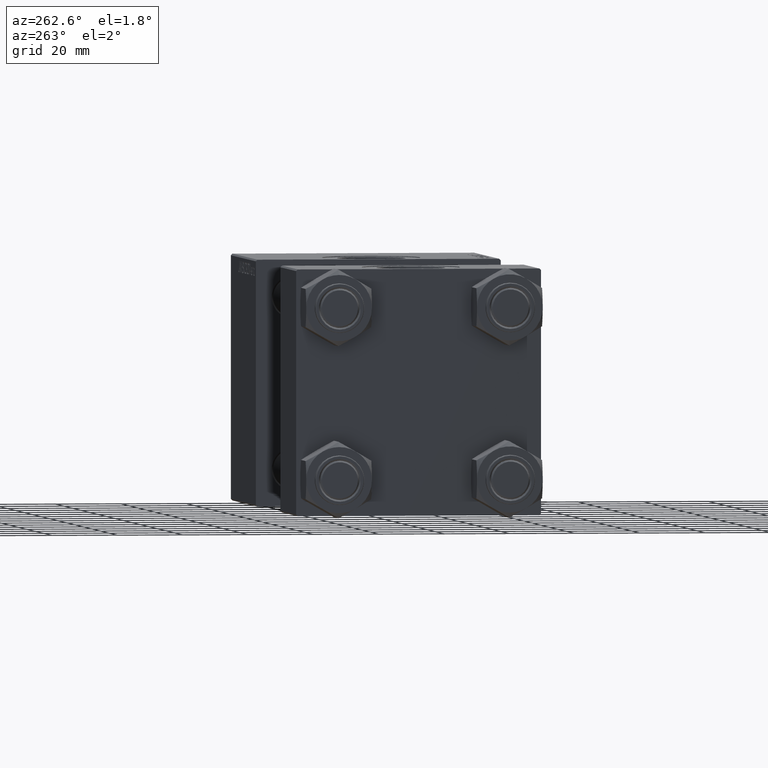
[diagram: clean part render]
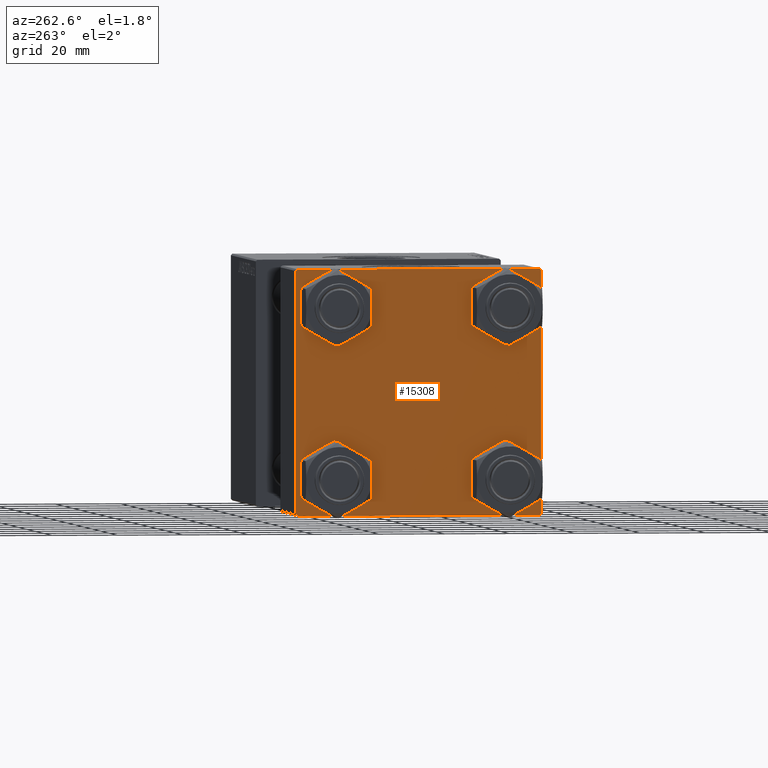
[diagram: same view with one face highlighted and labeled with its STEP entity id]
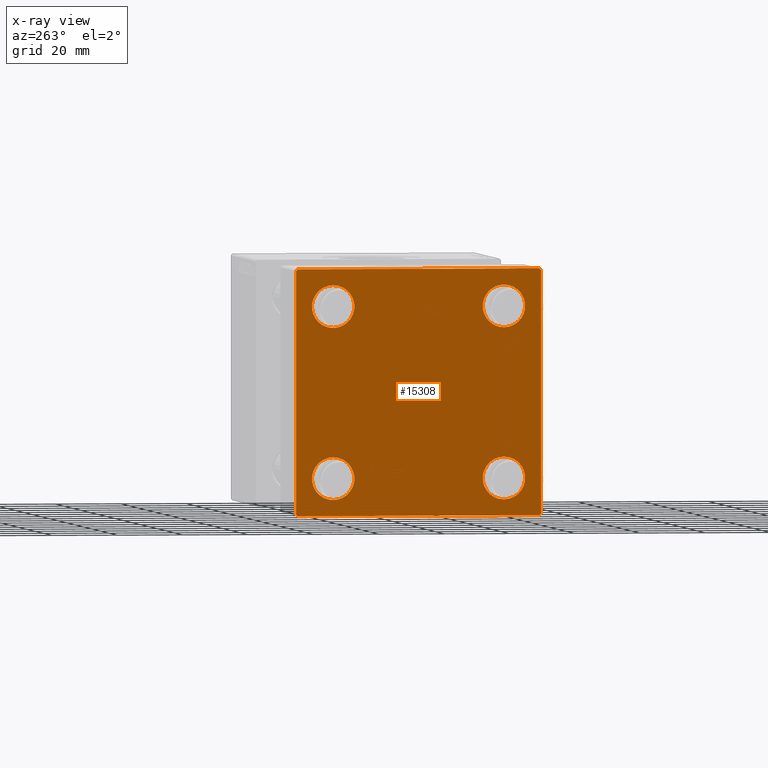
[diagram: x-ray of the same camera — body ghosted, the highlighted face saturated]
A machine part, auxiliary view. The second image highlights one B-rep face of the part: STEP entity #15308.
The next image is the same camera in x-ray: the body ghosted, the highlighted face saturated — about 0% of this face is hidden behind the body in this view.
In plain terms, the highlighted planar face has unit normal (-1, 0, 0).
Its self-contained STEP definition (entity closure, byte-faithful):
#644 = CIRCLE ( 'NONE', #3061, 6.500000000000023093 ) ;
#1018 = LINE ( 'NONE', #48705, #1690 ) ;
#1124 = DIRECTION ( 'NONE',  ( 0.000000000000000000, 9.251858538542971581E-17, -1.000000000000000000 ) ) ;
#1266 = DIRECTION ( 'NONE',  ( 0.000000000000000000, 0.000000000000000000, 1.000000000000000000 ) ) ;
#1512 = CARTESIAN_POINT ( 'NONE',  ( 0.000000000000000000, -26.14999999999999147, 26.15000000000000924 ) ) ;
#1562 = VERTEX_POINT ( 'NONE', #18338 ) ;
#1690 = VECTOR ( 'NONE', #37539, 1000.000000000000000 ) ;
#1730 = ORIENTED_EDGE ( 'NONE', *, *, #2962, .T. ) ;
#2144 = ORIENTED_EDGE ( 'NONE', *, *, #49362, .T. ) ;
#2298 = AXIS2_PLACEMENT_3D ( 'NONE', #1512, #9367, #1266 ) ;
#2701 = AXIS2_PLACEMENT_3D ( 'NONE', #38848, #46947, #38598 ) ;
#2962 = EDGE_CURVE ( 'NONE', #27516, #44916, #41429, .T. ) ;
#3061 = AXIS2_PLACEMENT_3D ( 'NONE', #7565, #18991, #46409 ) ;
#5873 = CARTESIAN_POINT ( 'NONE',  ( 0.000000000000000000, -37.50000000000000711, 36.99999999999999289 ) ) ;
#6425 = DIRECTION ( 'NONE',  ( 1.000000000000000000, -0.000000000000000000, 0.000000000000000000 ) ) ;
#7031 = VERTEX_POINT ( 'NONE', #31241 ) ;
#7172 = DIRECTION ( 'NONE',  ( 0.000000000000000000, 0.000000000000000000, 1.000000000000000000 ) ) ;
#7565 = CARTESIAN_POINT ( 'NONE',  ( 0.000000000000000000, -26.14999999999999147, 26.15000000000000924 ) ) ;
#7682 = VECTOR ( 'NONE', #49515, 1000.000000000000000 ) ;
#7831 = EDGE_CURVE ( 'NONE', #30831, #23333, #48501, .T. ) ;
#7920 = CARTESIAN_POINT ( 'NONE',  ( 0.000000000000000000, 37.49999999999999289, 37.00000000000000000 ) ) ;
#7930 = CARTESIAN_POINT ( 'NONE',  ( 0.000000000000000000, -26.14999999999999147, -26.15000000000000924 ) ) ;
#8259 = ORIENTED_EDGE ( 'NONE', *, *, #28139, .T. ) ;
#8741 = EDGE_CURVE ( 'NONE', #22875, #25698, #24701, .T. ) ;
#8817 = ORIENTED_EDGE ( 'NONE', *, *, #30505, .T. ) ;
#9002 = ORIENTED_EDGE ( 'NONE', *, *, #45645, .T. ) ;
#9184 = VECTOR ( 'NONE', #47075, 1000.000000000000000 ) ;
#9367 = DIRECTION ( 'NONE',  ( 1.000000000000000000, -0.000000000000000000, 0.000000000000000000 ) ) ;
#9475 = DIRECTION ( 'NONE',  ( 0.000000000000000000, 0.000000000000000000, 1.000000000000000000 ) ) ;
#9944 = VERTEX_POINT ( 'NONE', #23588 ) ;
#10943 = CARTESIAN_POINT ( 'NONE',  ( 0.000000000000000000, 26.14999999999999858, -26.15000000000000213 ) ) ;
#11521 = ORIENTED_EDGE ( 'NONE', *, *, #29496, .T. ) ;
#11957 = EDGE_CURVE ( 'NONE', #28321, #36147, #48499, .T. ) ;
#12076 = CARTESIAN_POINT ( 'NONE',  ( 0.000000000000000000, -26.14999999999999147, -32.65000000000002700 ) ) ;
#12543 = CARTESIAN_POINT ( 'NONE',  ( 0.000000000000000000, -37.50000000000000711, 37.49999999999999289 ) ) ;
#12641 = CARTESIAN_POINT ( 'NONE',  ( 0.000000000000000000, 36.99999999999997868, -37.50000000000000000 ) ) ;
#12800 = LINE ( 'NONE', #12543, #46181 ) ;
#14507 = VERTEX_POINT ( 'NONE', #22545 ) ;
#14747 = ORIENTED_EDGE ( 'NONE', *, *, #7831, .T. ) ;
#15142 = DIRECTION ( 'NONE',  ( 0.000000000000000000, -1.000000000000000000, -9.251858538542972814E-17 ) ) ;
#15256 = DIRECTION ( 'NONE',  ( 0.000000000000000000, 0.7071067811865474617, -0.7071067811865474617 ) ) ;
#15308 = ADVANCED_FACE ( 'NONE', ( #23131, #19818, #38366, #19057, #38872 ), #19561, .T. ) ;
#15587 = CIRCLE ( 'NONE', #18845, 6.500000000000023093 ) ;
#15772 = CARTESIAN_POINT ( 'NONE',  ( 0.000000000000000000, 37.49999999999999289, -36.99999999999998579 ) ) ;
#16267 = DIRECTION ( 'NONE',  ( 0.000000000000000000, 0.000000000000000000, 1.000000000000000000 ) ) ;
#16746 = EDGE_LOOP ( 'NONE', ( #26211, #29043 ) ) ;
#17082 = DIRECTION ( 'NONE',  ( -0.000000000000000000, -0.7071067811865474617, -0.7071067811865474617 ) ) ;
#17591 = CARTESIAN_POINT ( 'NONE',  ( 0.000000000000000000, 26.14999999999999858, 26.15000000000000213 ) ) ;
#18067 = CARTESIAN_POINT ( 'NONE',  ( -0.000000000000000000, -37.25000000000000000, 37.25000000000000000 ) ) ;
#18259 = EDGE_CURVE ( 'NONE', #44916, #22875, #1018, .T. ) ;
#18338 = CARTESIAN_POINT ( 'NONE',  ( 0.000000000000000000, -37.00000000000000711, 37.49999999999999289 ) ) ;
#18624 = DIRECTION ( 'NONE',  ( 0.000000000000000000, 0.000000000000000000, 1.000000000000000000 ) ) ;
#18821 = EDGE_LOOP ( 'NONE', ( #48805, #8259 ) ) ;
#18845 = AXIS2_PLACEMENT_3D ( 'NONE', #17591, #29281, #9475 ) ;
#18991 = DIRECTION ( 'NONE',  ( 1.000000000000000000, -0.000000000000000000, 0.000000000000000000 ) ) ;
#19057 = FACE_BOUND ( 'NONE', #41039, .T. ) ;
#19310 = DIRECTION ( 'NONE',  ( -1.000000000000000000, 0.000000000000000000, -0.000000000000000000 ) ) ;
#19561 = PLANE ( 'NONE',  #31622 ) ;
#19818 = FACE_BOUND ( 'NONE', #40375, .T. ) ;
#19870 = DIRECTION ( 'NONE',  ( 1.000000000000000000, -0.000000000000000000, 0.000000000000000000 ) ) ;
#21508 = CARTESIAN_POINT ( 'NONE',  ( 0.000000000000000000, -37.50000000000000000, -37.00000000000003553 ) ) ;
#21635 = LINE ( 'NONE', #18067, #36394 ) ;
#21922 = DIRECTION ( 'NONE',  ( 0.000000000000000000, 0.000000000000000000, 1.000000000000000000 ) ) ;
#22152 = AXIS2_PLACEMENT_3D ( 'NONE', #22174, #6425, #21922 ) ;
#22174 = CARTESIAN_POINT ( 'NONE',  ( 0.000000000000000000, -26.14999999999999147, -26.15000000000000924 ) ) ;
#22438 = CARTESIAN_POINT ( 'NONE',  ( 0.000000000000000000, 26.14999999999999858, 26.15000000000000213 ) ) ;
#22515 = ORIENTED_EDGE ( 'NONE', *, *, #8741, .T. ) ;
#22545 = CARTESIAN_POINT ( 'NONE',  ( 0.000000000000000000, 26.14999999999999858, 19.64999999999998437 ) ) ;
#22841 = EDGE_LOOP ( 'NONE', ( #30928, #22515, #30950, #2144, #29474, #8817, #23203, #1730 ) ) ;
#22875 = VERTEX_POINT ( 'NONE', #15772 ) ;
#23131 = FACE_BOUND ( 'NONE', #18821, .T. ) ;
#23203 = ORIENTED_EDGE ( 'NONE', *, *, #46627, .F. ) ;
#23333 = VERTEX_POINT ( 'NONE', #26092 ) ;
#23588 = CARTESIAN_POINT ( 'NONE',  ( 0.000000000000000000, 26.14999999999999858, 32.65000000000002700 ) ) ;
#24201 = AXIS2_PLACEMENT_3D ( 'NONE', #7930, #19870, #7172 ) ;
#24600 = CIRCLE ( 'NONE', #2701, 6.500000000000015987 ) ;
#24701 = LINE ( 'NONE', #36387, #48392 ) ;
#25284 = CARTESIAN_POINT ( 'NONE',  ( 0.000000000000000000, 26.14999999999999858, -19.64999999999998792 ) ) ;
#25352 = VERTEX_POINT ( 'NONE', #44287 ) ;
#25698 = VERTEX_POINT ( 'NONE', #12641 ) ;
#26092 = CARTESIAN_POINT ( 'NONE',  ( 0.000000000000000000, -26.14999999999999147, -19.64999999999999503 ) ) ;
#26211 = ORIENTED_EDGE ( 'NONE', *, *, #26516, .T. ) ;
#26516 = EDGE_CURVE ( 'NONE', #43763, #25352, #30318, .T. ) ;
#27516 = VERTEX_POINT ( 'NONE', #36923 ) ;
#28139 = EDGE_CURVE ( 'NONE', #36147, #28321, #644, .T. ) ;
#28321 = VERTEX_POINT ( 'NONE', #31186 ) ;
#29043 = ORIENTED_EDGE ( 'NONE', *, *, #46344, .T. ) ;
#29281 = DIRECTION ( 'NONE',  ( 1.000000000000000000, -0.000000000000000000, 0.000000000000000000 ) ) ;
#29474 = ORIENTED_EDGE ( 'NONE', *, *, #33742, .F. ) ;
#29496 = EDGE_CURVE ( 'NONE', #14507, #9944, #30643, .T. ) ;
#30318 = CIRCLE ( 'NONE', #48152, 6.500000000000015987 ) ;
#30505 = EDGE_CURVE ( 'NONE', #47122, #1562, #21635, .T. ) ;
#30643 = CIRCLE ( 'NONE', #37966, 6.500000000000023093 ) ;
#30831 = VERTEX_POINT ( 'NONE', #12076 ) ;
#30928 = ORIENTED_EDGE ( 'NONE', *, *, #18259, .T. ) ;
#30950 = ORIENTED_EDGE ( 'NONE', *, *, #41646, .T. ) ;
#31186 = CARTESIAN_POINT ( 'NONE',  ( 0.000000000000000000, -26.14999999999999147, 32.65000000000003411 ) ) ;
#31241 = CARTESIAN_POINT ( 'NONE',  ( 0.000000000000000000, -37.00000000000002132, -37.50000000000000711 ) ) ;
#31622 = AXIS2_PLACEMENT_3D ( 'NONE', #46474, #19310, #46720 ) ;
#33073 = DIRECTION ( 'NONE',  ( -0.000000000000000000, 0.7071067811865474617, 0.7071067811865474617 ) ) ;
#33742 = EDGE_CURVE ( 'NONE', #47122, #38173, #12800, .T. ) ;
#33808 = CARTESIAN_POINT ( 'NONE',  ( 0.000000000000000000, -37.24999999999975842, -37.25000000000027001 ) ) ;
#36147 = VERTEX_POINT ( 'NONE', #43740 ) ;
#36185 = CARTESIAN_POINT ( 'NONE',  ( 0.000000000000000000, 37.49999999999999289, 37.50000000000000000 ) ) ;
#36387 = CARTESIAN_POINT ( 'NONE',  ( 0.000000000000000000, 37.24999999999998579, -37.24999999999998579 ) ) ;
#36394 = VECTOR ( 'NONE', #33073, 1000.000000000000114 ) ;
#36923 = CARTESIAN_POINT ( 'NONE',  ( 0.000000000000000000, 36.99999999999999289, 37.50000000000000000 ) ) ;
#37539 = DIRECTION ( 'NONE',  ( 0.000000000000000000, 0.000000000000000000, -1.000000000000000000 ) ) ;
#37933 = DIRECTION ( 'NONE',  ( 1.000000000000000000, -0.000000000000000000, 0.000000000000000000 ) ) ;
#37966 = AXIS2_PLACEMENT_3D ( 'NONE', #22438, #37933, #18624 ) ;
#38173 = VERTEX_POINT ( 'NONE', #21508 ) ;
#38366 = FACE_BOUND ( 'NONE', #16746, .T. ) ;
#38598 = DIRECTION ( 'NONE',  ( 0.000000000000000000, 0.000000000000000000, 1.000000000000000000 ) ) ;
#38848 = CARTESIAN_POINT ( 'NONE',  ( 0.000000000000000000, 26.14999999999999858, -26.15000000000000213 ) ) ;
#38872 = FACE_OUTER_BOUND ( 'NONE', #22841, .T. ) ;
#39737 = LINE ( 'NONE', #36185, #9184 ) ;
#39894 = DIRECTION ( 'NONE',  ( 1.000000000000000000, -0.000000000000000000, 0.000000000000000000 ) ) ;
#39918 = ORIENTED_EDGE ( 'NONE', *, *, #44009, .T. ) ;
#40044 = CIRCLE ( 'NONE', #22152, 6.500000000000015987 ) ;
#40375 = EDGE_LOOP ( 'NONE', ( #9002, #14747 ) ) ;
#41039 = EDGE_LOOP ( 'NONE', ( #39918, #11521 ) ) ;
#41429 = LINE ( 'NONE', #50035, #42671 ) ;
#41646 = EDGE_CURVE ( 'NONE', #25698, #7031, #44876, .T. ) ;
#41666 = LINE ( 'NONE', #33808, #7682 ) ;
#42313 = VECTOR ( 'NONE', #15142, 1000.000000000000000 ) ;
#42671 = VECTOR ( 'NONE', #15256, 1000.000000000000114 ) ;
#43740 = CARTESIAN_POINT ( 'NONE',  ( 0.000000000000000000, -26.14999999999999147, 19.64999999999999147 ) ) ;
#43763 = VERTEX_POINT ( 'NONE', #25284 ) ;
#44009 = EDGE_CURVE ( 'NONE', #9944, #14507, #15587, .T. ) ;
#44287 = CARTESIAN_POINT ( 'NONE',  ( 0.000000000000000000, 26.14999999999999858, -32.65000000000001990 ) ) ;
#44876 = LINE ( 'NONE', #49926, #42313 ) ;
#44916 = VERTEX_POINT ( 'NONE', #7920 ) ;
#45645 = EDGE_CURVE ( 'NONE', #23333, #30831, #40044, .T. ) ;
#46181 = VECTOR ( 'NONE', #1124, 1000.000000000000000 ) ;
#46344 = EDGE_CURVE ( 'NONE', #25352, #43763, #24600, .T. ) ;
#46409 = DIRECTION ( 'NONE',  ( 0.000000000000000000, 0.000000000000000000, 1.000000000000000000 ) ) ;
#46474 = CARTESIAN_POINT ( 'NONE',  ( 0.000000000000000000, 0.000000000000000000, 0.000000000000000000 ) ) ;
#46627 = EDGE_CURVE ( 'NONE', #27516, #1562, #39737, .T. ) ;
#46720 = DIRECTION ( 'NONE',  ( -0.000000000000000000, 0.000000000000000000, 1.000000000000000000 ) ) ;
#46947 = DIRECTION ( 'NONE',  ( 1.000000000000000000, -0.000000000000000000, 0.000000000000000000 ) ) ;
#47075 = DIRECTION ( 'NONE',  ( 0.000000000000000000, -1.000000000000000000, -9.251858538542971581E-17 ) ) ;
#47122 = VERTEX_POINT ( 'NONE', #5873 ) ;
#48152 = AXIS2_PLACEMENT_3D ( 'NONE', #10943, #39894, #16267 ) ;
#48392 = VECTOR ( 'NONE', #17082, 1000.000000000000114 ) ;
#48499 = CIRCLE ( 'NONE', #2298, 6.500000000000023093 ) ;
#48501 = CIRCLE ( 'NONE', #24201, 6.500000000000015987 ) ;
#48705 = CARTESIAN_POINT ( 'NONE',  ( 0.000000000000000000, 37.49999999999999289, 37.50000000000000000 ) ) ;
#48805 = ORIENTED_EDGE ( 'NONE', *, *, #11957, .T. ) ;
#49362 = EDGE_CURVE ( 'NONE', #7031, #38173, #41666, .T. ) ;
#49515 = DIRECTION ( 'NONE',  ( 0.000000000000000000, -0.7071067811865524577, 0.7071067811865426878 ) ) ;
#49926 = CARTESIAN_POINT ( 'NONE',  ( 0.000000000000000000, 37.49999999999999289, -37.50000000000000000 ) ) ;
#50035 = CARTESIAN_POINT ( 'NONE',  ( 0.000000000000000000, 37.24999999999999289, 37.24999999999999289 ) ) ;